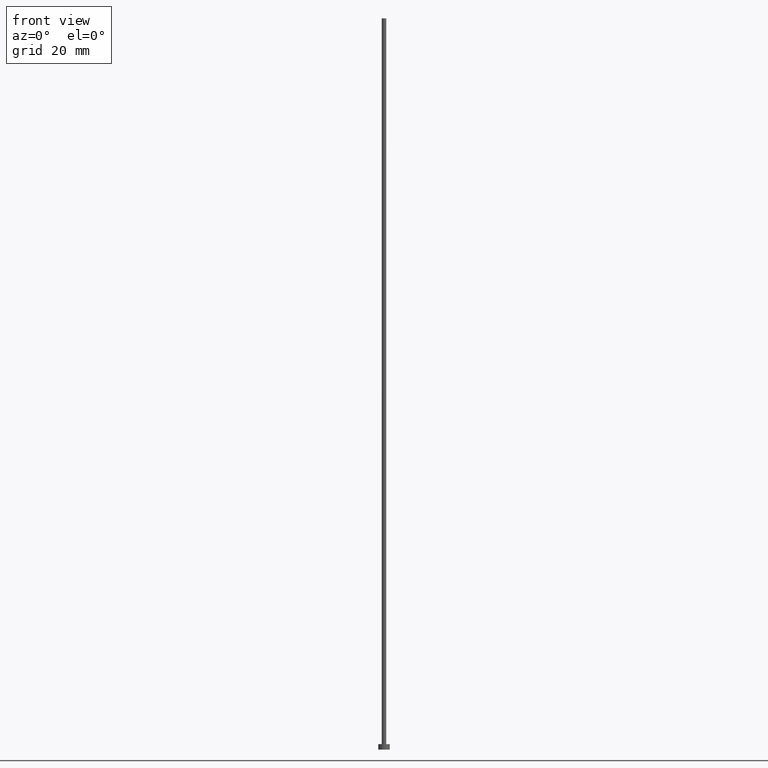
[diagram: clean part render]
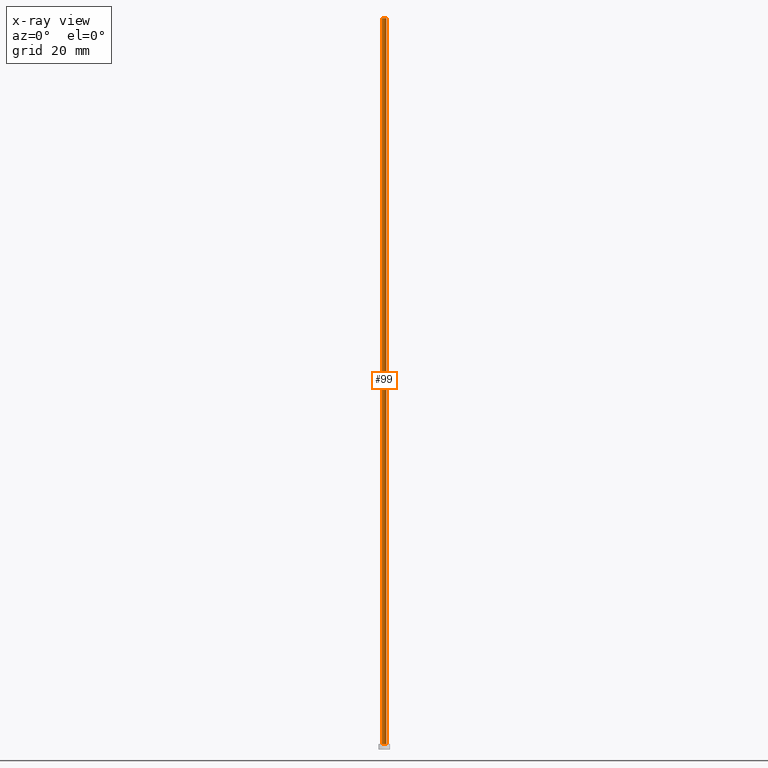
[diagram: x-ray — body ghosted, one internal face saturated and labeled with its STEP entity id]
A machine part, front view, then the same camera in x-ray: the body is ghosted and one INTERNAL B-rep face — a face not visible from any outside direction — is saturated and labeled: STEP entity #99.
In plain terms, the highlighted cylindrical surface (edge-blend (fillet) strip) has radius 0.5 mm, axis along (-0, -0, -1).
Its self-contained STEP definition (entity closure, byte-faithful):
#13 = VERTEX_POINT ( 'NONE', #77 ) ;
#20 = DIRECTION ( 'NONE',  ( 0.000000000000000000, 0.000000000000000000, 1.000000000000000000 ) ) ;
#21 = DIRECTION ( 'NONE',  ( -0.000000000000000000, -0.000000000000000000, -1.000000000000000000 ) ) ;
#30 = EDGE_CURVE ( 'NONE', #153, #13, #40, .T. ) ;
#35 = VECTOR ( 'NONE', #21, 1000.000000000000000 ) ;
#36 = EDGE_CURVE ( 'NONE', #160, #13, #164, .T. ) ;
#39 = FACE_OUTER_BOUND ( 'NONE', #150, .T. ) ;
#40 = LINE ( 'NONE', #189, #78 ) ;
#48 = LINE ( 'NONE', #237, #35 ) ;
#53 = ORIENTED_EDGE ( 'NONE', *, *, #36, .T. ) ;
#58 = CIRCLE ( 'NONE', #192, 0.5000000000000000000 ) ;
#59 = CARTESIAN_POINT ( 'NONE',  ( 0.000000000000000000, 0.000000000000000000, 1.199999999999999956 ) ) ;
#71 = AXIS2_PLACEMENT_3D ( 'NONE', #59, #20, #228 ) ;
#74 = ORIENTED_EDGE ( 'NONE', *, *, #236, .T. ) ;
#77 = CARTESIAN_POINT ( 'NONE',  ( -0.5000000000000000000, 0.000000000000000000, 1.199999999999999956 ) ) ;
#78 = VECTOR ( 'NONE', #121, 1000.000000000000000 ) ;
#84 = CARTESIAN_POINT ( 'NONE',  ( 0.000000000000000000, 0.000000000000000000, 160.0000000000000284 ) ) ;
#85 = CARTESIAN_POINT ( 'NONE',  ( 0.000000000000000000, 0.000000000000000000, 160.0000000000000284 ) ) ;
#99 = ADVANCED_FACE ( 'NONE', ( #39 ), #123, .T. ) ;
#105 = DIRECTION ( 'NONE',  ( -1.000000000000000000, 0.000000000000000000, 0.000000000000000000 ) ) ;
#112 = VERTEX_POINT ( 'NONE', #181 ) ;
#119 = ORIENTED_EDGE ( 'NONE', *, *, #137, .F. ) ;
#121 = DIRECTION ( 'NONE',  ( -0.000000000000000000, -0.000000000000000000, -1.000000000000000000 ) ) ;
#123 = CYLINDRICAL_SURFACE ( 'NONE', #203, 0.5000000000000000000 ) ;
#137 = EDGE_CURVE ( 'NONE', #112, #153, #58, .T. ) ;
#150 = EDGE_LOOP ( 'NONE', ( #119, #74, #53, #182 ) ) ;
#153 = VERTEX_POINT ( 'NONE', #178 ) ;
#160 = VERTEX_POINT ( 'NONE', #210 ) ;
#164 = CIRCLE ( 'NONE', #71, 0.5000000000000000000 ) ;
#178 = CARTESIAN_POINT ( 'NONE',  ( -0.5000000000000000000, 0.000000000000000000, 160.0000000000000284 ) ) ;
#181 = CARTESIAN_POINT ( 'NONE',  ( 0.5000000000000000000, 6.123233995736766036E-17, 160.0000000000000284 ) ) ;
#182 = ORIENTED_EDGE ( 'NONE', *, *, #30, .F. ) ;
#189 = CARTESIAN_POINT ( 'NONE',  ( -0.5000000000000000000, 0.000000000000000000, 160.0000000000000284 ) ) ;
#191 = DIRECTION ( 'NONE',  ( 0.000000000000000000, 0.000000000000000000, 1.000000000000000000 ) ) ;
#192 = AXIS2_PLACEMENT_3D ( 'NONE', #84, #191, #211 ) ;
#194 = DIRECTION ( 'NONE',  ( -0.000000000000000000, -0.000000000000000000, -1.000000000000000000 ) ) ;
#203 = AXIS2_PLACEMENT_3D ( 'NONE', #85, #194, #105 ) ;
#210 = CARTESIAN_POINT ( 'NONE',  ( 0.5000000000000000000, 6.123233995736766036E-17, 1.199999999999999956 ) ) ;
#211 = DIRECTION ( 'NONE',  ( 1.000000000000000000, 0.000000000000000000, 0.000000000000000000 ) ) ;
#228 = DIRECTION ( 'NONE',  ( 1.000000000000000000, 0.000000000000000000, 0.000000000000000000 ) ) ;
#236 = EDGE_CURVE ( 'NONE', #112, #160, #48, .T. ) ;
#237 = CARTESIAN_POINT ( 'NONE',  ( 0.5000000000000000000, 6.123233995736766036E-17, 160.0000000000000284 ) ) ;